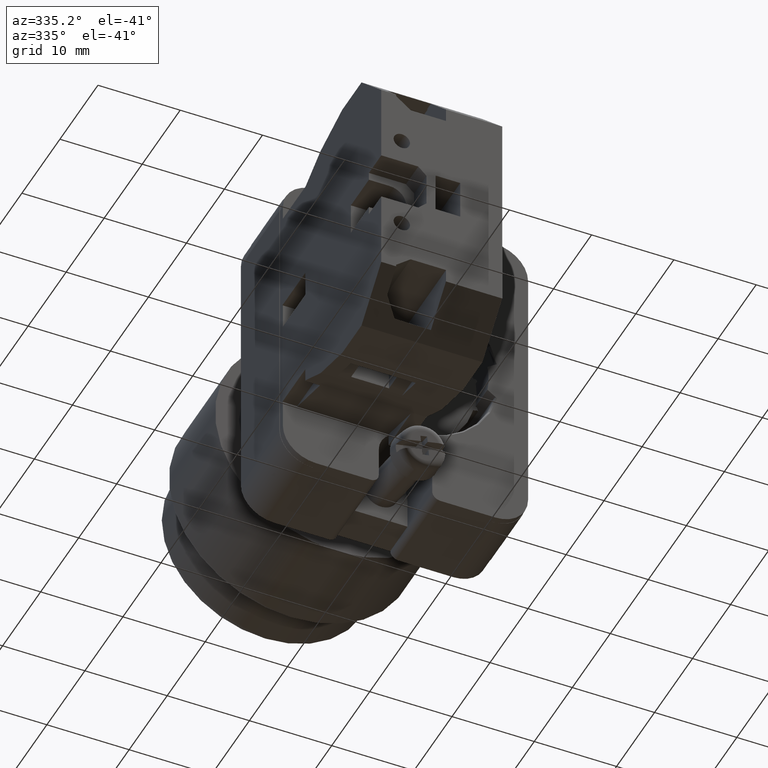
[diagram: clean part render]
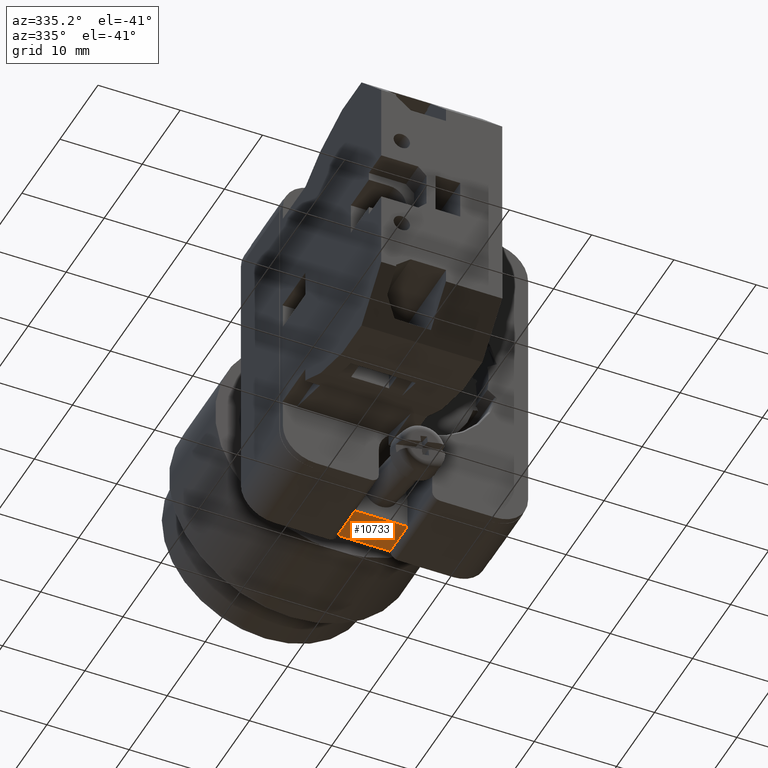
[diagram: same view with one face highlighted and labeled with its STEP entity id]
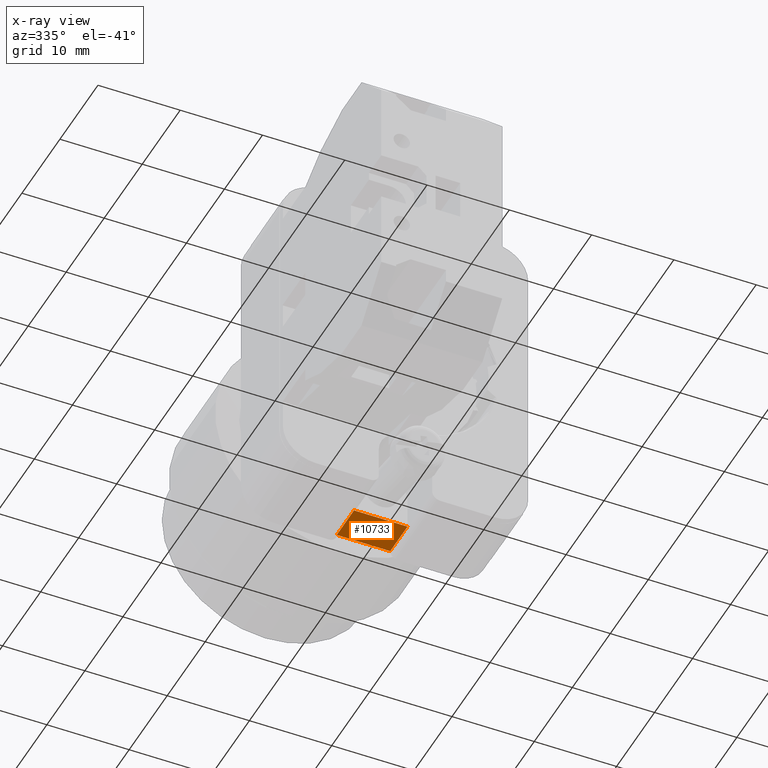
[diagram: x-ray of the same camera — body ghosted, the highlighted face saturated]
A machine part, auxiliary view. The second image highlights one B-rep face of the part: STEP entity #10733.
The next image is the same camera in x-ray: the body ghosted, the highlighted face saturated — about 0% of this face is hidden behind the body in this view.
In plain terms, the highlighted planar face has unit normal (-0, 0, 1).
Its self-contained STEP definition (entity closure, byte-faithful):
#546 = EDGE_CURVE ( 'NONE', #12329, #10818, #3960, .T. ) ;
#725 = AXIS2_PLACEMENT_3D ( 'NONE', #3175, #8154, #2221 ) ;
#1186 = VECTOR ( 'NONE', #10452, 39.37007874015748100 ) ;
#1235 = PLANE ( 'NONE',  #725 ) ;
#1866 = ORIENTED_EDGE ( 'NONE', *, *, #6740, .T. ) ;
#2221 = DIRECTION ( 'NONE',  ( 0.0000000000000000000, -0.0000000000000000000, -1.000000000000000000 ) ) ;
#2227 = CARTESIAN_POINT ( 'NONE',  ( 0.1279524999999997200, 0.7480300000000036400, -0.1791338582677165500 ) ) ;
#3175 = CARTESIAN_POINT ( 'NONE',  ( -0.1279524999999997200, 0.7480300000000036400, -0.08070866141732283000 ) ) ;
#3412 = LINE ( 'NONE', #11550, #8360 ) ;
#3830 = LINE ( 'NONE', #7485, #1186 ) ;
#3835 = DIRECTION ( 'NONE',  ( 0.0000000000000000000, 0.0000000000000000000, 1.000000000000000000 ) ) ;
#3960 = LINE ( 'NONE', #11691, #8902 ) ;
#4321 = VERTEX_POINT ( 'NONE', #8616 ) ;
#4469 = ORIENTED_EDGE ( 'NONE', *, *, #7338, .T. ) ;
#5302 = EDGE_CURVE ( 'NONE', #4321, #10818, #3412, .T. ) ;
#5479 = FACE_OUTER_BOUND ( 'NONE', #7019, .T. ) ;
#6287 = CARTESIAN_POINT ( 'NONE',  ( 0.1279524999999997200, 0.7480300000000036400, 0.0000000000000000000 ) ) ;
#6303 = ORIENTED_EDGE ( 'NONE', *, *, #546, .F. ) ;
#6740 = EDGE_CURVE ( 'NONE', #12329, #10493, #12673, .T. ) ;
#7019 = EDGE_LOOP ( 'NONE', ( #1866, #4469, #10081, #6303 ) ) ;
#7338 = EDGE_CURVE ( 'NONE', #10493, #4321, #3830, .T. ) ;
#7485 = CARTESIAN_POINT ( 'NONE',  ( -0.1279524999999975300, 0.7480300000000036400, -0.08070866141732283000 ) ) ;
#7636 = CARTESIAN_POINT ( 'NONE',  ( -0.1279524999999997200, 0.7480300000000036400, -0.1791338582677165200 ) ) ;
#8154 = DIRECTION ( 'NONE',  ( 0.0000000000000000000, -1.000000000000000000, 0.0000000000000000000 ) ) ;
#8360 = VECTOR ( 'NONE', #8615, 39.37007874015748100 ) ;
#8367 = CARTESIAN_POINT ( 'NONE',  ( 0.0000000000000000000, 0.7480300000000036400, -0.1791338582677165200 ) ) ;
#8615 = DIRECTION ( 'NONE',  ( 1.000000000000000000, 0.0000000000000000000, 0.0000000000000000000 ) ) ;
#8616 = CARTESIAN_POINT ( 'NONE',  ( -0.1279524999999975300, 0.7480300000000036400, 0.0000000000000000000 ) ) ;
#8902 = VECTOR ( 'NONE', #3835, 39.37007874015748100 ) ;
#9351 = DIRECTION ( 'NONE',  ( -1.000000000000000000, 0.0000000000000000000, 0.0000000000000000000 ) ) ;
#10081 = ORIENTED_EDGE ( 'NONE', *, *, #5302, .T. ) ;
#10452 = DIRECTION ( 'NONE',  ( 0.0000000000000000000, 0.0000000000000000000, 1.000000000000000000 ) ) ;
#10493 = VERTEX_POINT ( 'NONE', #7636 ) ;
#10733 = ADVANCED_FACE ( 'NONE', ( #5479 ), #1235, .F. ) ;
#10818 = VERTEX_POINT ( 'NONE', #6287 ) ;
#11550 = CARTESIAN_POINT ( 'NONE',  ( -0.1279524999999997200, 0.7480300000000036400, 0.0000000000000000000 ) ) ;
#11691 = CARTESIAN_POINT ( 'NONE',  ( 0.1279524999999997200, 0.7480300000000036400, -0.08070866141732283000 ) ) ;
#12329 = VERTEX_POINT ( 'NONE', #2227 ) ;
#12354 = VECTOR ( 'NONE', #9351, 39.37007874015748100 ) ;
#12673 = LINE ( 'NONE', #8367, #12354 ) ;